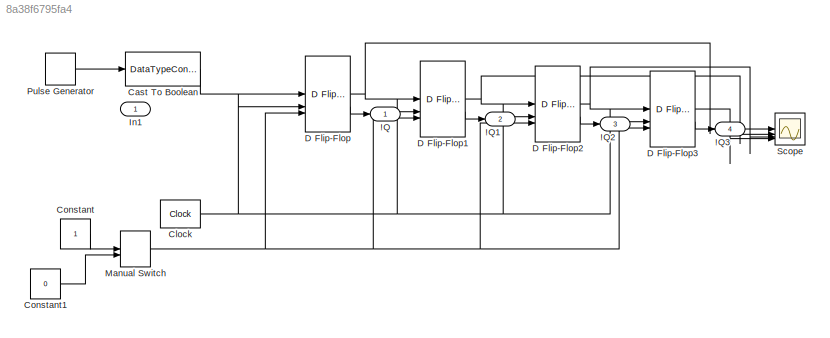
MODEL slx_8a38f6795fa4
KIND model
CONFIG AbsTol = auto
CONFIG EnableMultiTasking = off
CONFIG FixedStep = auto
CONFIG MaxStep = auto
CONFIG MinStep = auto
CONFIG RelTol = 1e-3
CONFIG SampleTimeConstraint = Unconstrained
CONFIG SolverName = VariableStepAuto
CONFIG StartTime = 0.0
CONFIG StopTime = 10.0
BLOCK [Outport] !Q
BLOCK [Outport] !Q1
  Port = 2
BLOCK [Outport] !Q2
  Port = 3
BLOCK [Outport] !Q3
  Port = 4
BLOCK [DataTypeConversion] Cast To Boolean
  OutDataTypeStr = boolean
  RndMeth = Floor
  SaturateOnIntegerOverflow = off
BLOCK [Reference] Clock  REF=simulink_extras/Flip Flops/Clock
  SourceBlock = simulink_extras/Flip Flops/Clock
  SourceType = Digital clock
BLOCK [Constant] Constant
  OutDataTypeStr = boolean
BLOCK [Constant] Constant1
  OutDataTypeStr = boolean
  Value = 0
BLOCK [Reference] D Flip-Flop  REF=simulink_extras/Flip Flops/D Flip-Flop
  SourceBlock = simulink_extras/Flip Flops/D Flip-Flop
  SourceType = DFlipFlop
BLOCK [Reference] D Flip-Flop1  REF=simulink_extras/Flip Flops/D Flip-Flop
  SourceBlock = simulink_extras/Flip Flops/D Flip-Flop
  SourceType = DFlipFlop
BLOCK [Reference] D Flip-Flop2  REF=simulink_extras/Flip Flops/D Flip-Flop
  SourceBlock = simulink_extras/Flip Flops/D Flip-Flop
  SourceType = DFlipFlop
BLOCK [Reference] D Flip-Flop3  REF=simulink_extras/Flip Flops/D Flip-Flop
  SourceBlock = simulink_extras/Flip Flops/D Flip-Flop
  SourceType = DFlipFlop
BLOCK [Inport] In1
BLOCK [ManualSwitch] Manual Switch
BLOCK [DiscretePulseGenerator] Pulse Generator
  Period = 1
  PulseType = Time based
  PulseWidth = 50
BLOCK [Scope] Scope
  Floating = off
  NumInputPorts = 4
  ScopeSpecificationString = Simulink.scopes.TimeScopeBlockCfg('CurrentConfiguration', extmgr.ConfigurationSet(extmgr.Configuration('Core','General UI',true),extmgr.Configuration('Core','Source UI',true),extmgr.Configuration('Sources','WiredSimulink',true),extmgr.Configuration('Visuals','Time Domain',true,'SerializedDisplays',{struct('MinYLimReal','-0.125','MaxYLimReal','1.125','YLabelReal','','MinYLimMag','0.00000','MaxYLimM...<+3391ch>
LINE Cast To Boolean:1 -> D Flip-Flop:1
NET Clock:1 -> D Flip-Flop1:2, D Flip-Flop2:2, D Flip-Flop3:2, D Flip-Flop:2
LINE Constant1:1 -> Manual Switch:2
LINE Constant:1 -> Manual Switch:1
NET D Flip-Flop1:1 -> D Flip-Flop2:1, Scope:2
LINE D Flip-Flop1:2 -> !Q1:1
NET D Flip-Flop2:1 -> D Flip-Flop3:1, Scope:3
LINE D Flip-Flop2:2 -> !Q2:1
LINE D Flip-Flop3:1 -> Scope:4
LINE D Flip-Flop3:2 -> !Q3:1
NET D Flip-Flop:1 -> D Flip-Flop1:1, Scope:1
LINE D Flip-Flop:2 -> !Q:1
NET Manual Switch:1 -> D Flip-Flop1:3, D Flip-Flop2:3, D Flip-Flop3:3, D Flip-Flop:3
LINE Pulse Generator:1 -> Cast To Boolean:1
note: NET lines group one-source signal fan-out (src -> all destinations, sorted); 1:1 wires keep LINE
